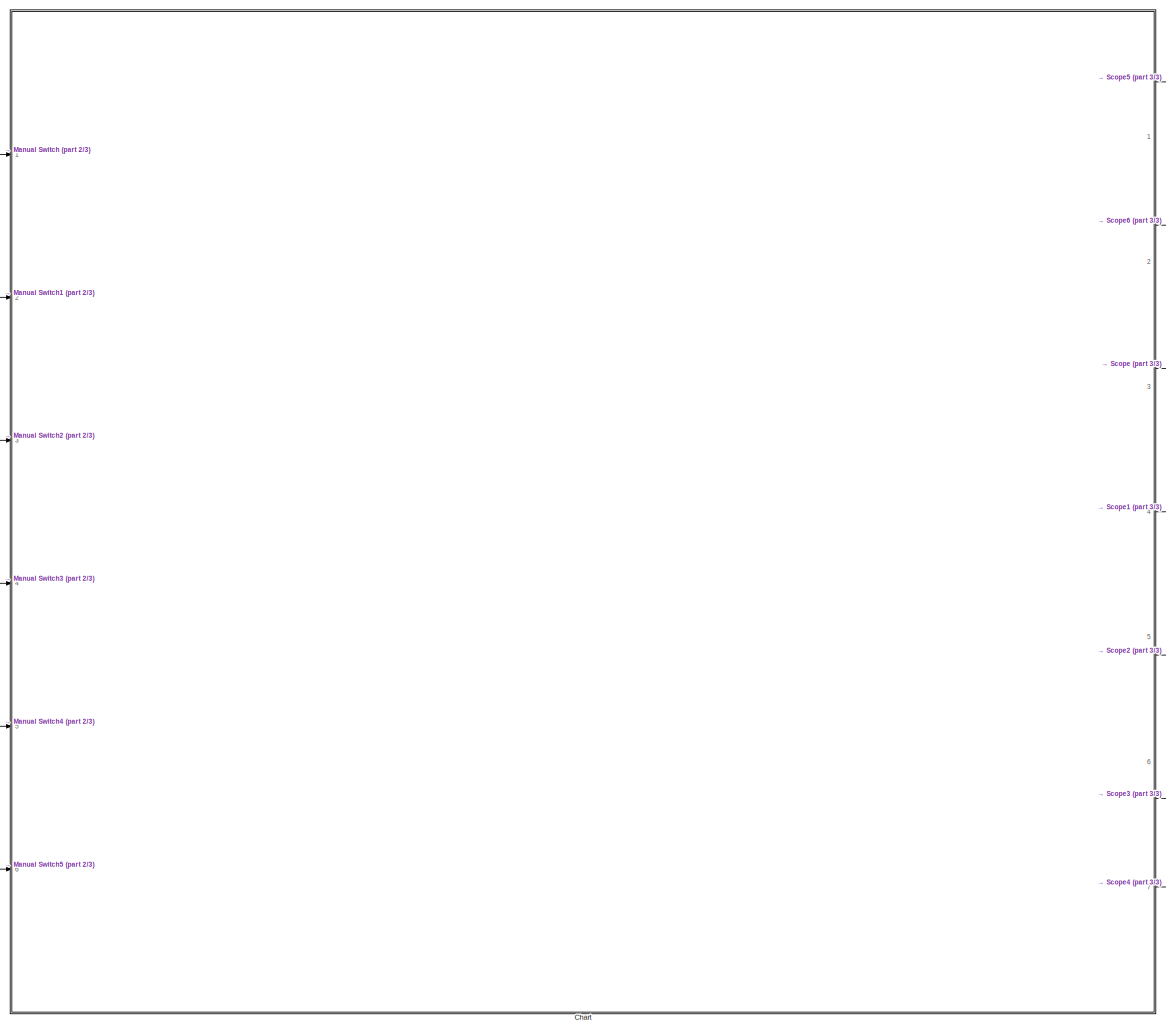
[diagram: root canvas - part 1/3, center side, full height]
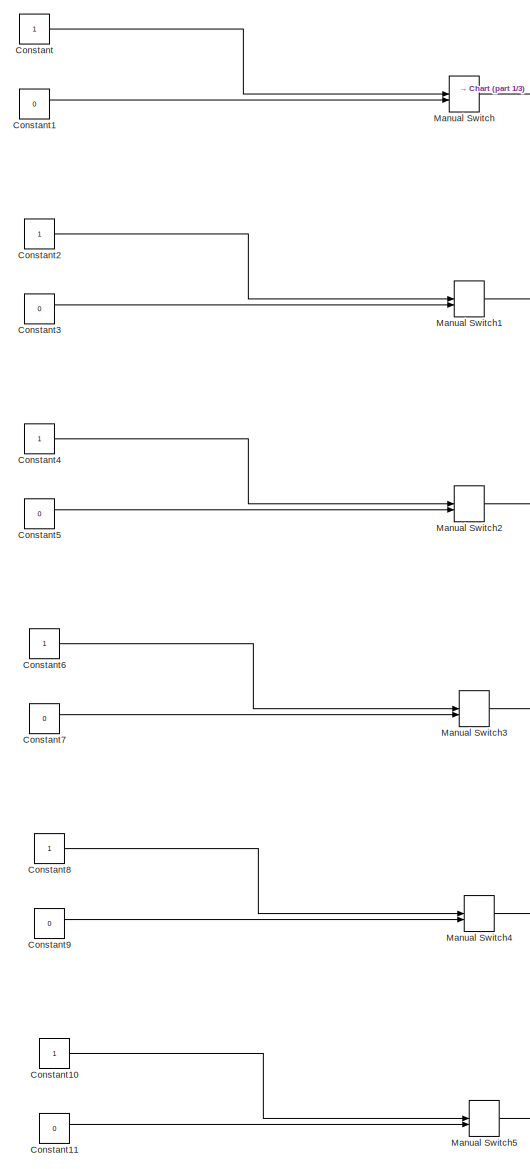
[diagram: root canvas - part 2/3, left side, full height]
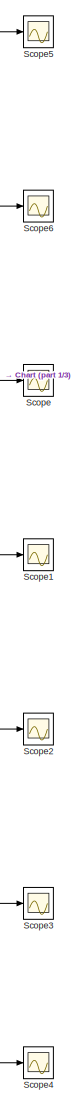
[diagram: root canvas - part 3/3, right side, full height]
MODEL slx_57e6ab57b922
KIND model
CONFIG AbsTol = auto
CONFIG EnableMultiTasking = on
CONFIG FixedStep = 0.1
CONFIG MaxStep = auto
CONFIG MinStep = auto
CONFIG RelTol = 1e-3
CONFIG SampleTimeConstraint = Unconstrained
CONFIG SolverName = FixedStepDiscrete
CONFIG StartTime = 0.0
CONFIG StopTime = inf
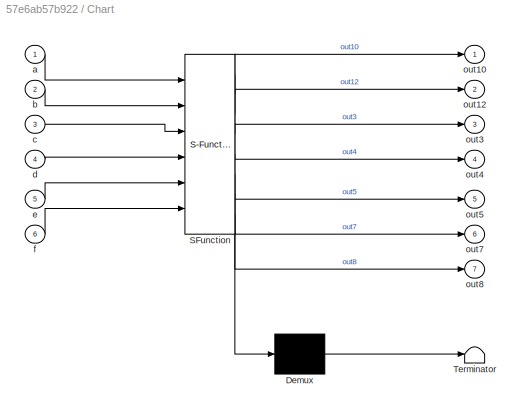
BLOCK [SubSystem] Chart
  ErrorFcn = Stateflow.Translate.translate
  PermitHierarchicalResolution = ExplicitOnly
  Ports = [6, 7]
  RequestExecContextInheritance = off
  SFBlockType = Chart
  TreatAsAtomicUnit = on
BLOCK [Demux] Chart/ Demux 
  Outputs = 1
  Ports = [1, 1]
BLOCK [S-Function] Chart/ SFunction 
  EnableBusSupport = on
  FunctionName = sf_sfun
  PortCounts = [6 8]
  Ports = [6, 8]
  SFcnIsStateOwnerBlock = off
  SFunctionDeploymentMode = off
  Tag = Stateflow S-Function 3
BLOCK [Terminator] Chart/ Terminator 
BLOCK [Inport] Chart/a
BLOCK [Inport] Chart/b
  Port = 2
BLOCK [Inport] Chart/c
  Port = 3
BLOCK [Inport] Chart/d
  Port = 4
BLOCK [Inport] Chart/e
  Port = 5
BLOCK [Inport] Chart/f
  Port = 6
BLOCK [Outport] Chart/out10
BLOCK [Outport] Chart/out12
  Port = 2
BLOCK [Outport] Chart/out3
  Port = 3
BLOCK [Outport] Chart/out4
  Port = 4
BLOCK [Outport] Chart/out5
  Port = 5
BLOCK [Outport] Chart/out7
  Port = 6
BLOCK [Outport] Chart/out8
  Port = 7
BLOCK [Constant] Constant
BLOCK [Constant] Constant1
  Value = 0
BLOCK [Constant] Constant10
BLOCK [Constant] Constant11
  Value = 0
BLOCK [Constant] Constant2
BLOCK [Constant] Constant3
  Value = 0
BLOCK [Constant] Constant4
BLOCK [Constant] Constant5
  Value = 0
BLOCK [Constant] Constant6
BLOCK [Constant] Constant7
  Value = 0
BLOCK [Constant] Constant8
BLOCK [Constant] Constant9
  Value = 0
BLOCK [ManualSwitch] Manual Switch
  CurrentSetting = 0
BLOCK [ManualSwitch] Manual Switch1
  CurrentSetting = 0
BLOCK [ManualSwitch] Manual Switch2
BLOCK [ManualSwitch] Manual Switch3
  CurrentSetting = 0
BLOCK [ManualSwitch] Manual Switch4
  CurrentSetting = 0
BLOCK [ManualSwitch] Manual Switch5
  CurrentSetting = 0
BLOCK [Scope] Scope
  Floating = off
  NumInputPorts = 1
  Ports = [1]
  ScopeSpecificationString = Simulink.scopes.TimeScopeBlockCfg('CurrentConfiguration', extmgr.ConfigurationSet(extmgr.Configuration('Core','General UI',true),extmgr.Configuration('Core','Source UI',true),extmgr.Configuration('Sources','WiredSimulink',true),extmgr.Configuration('Visuals','Time Domain',true,'SerializedDisplays',{struct('MinYLimReal','-1.00000','MaxYLimReal','1.00000','YLabelReal','','MinYLimMag','0.00000','MaxY...<+1360ch>
BLOCK [Scope] Scope1
  Floating = off
  NumInputPorts = 1
  Ports = [1]
  ScopeSpecificationString = Simulink.scopes.TimeScopeBlockCfg('CurrentConfiguration', extmgr.ConfigurationSet(extmgr.Configuration('Core','General UI',true),extmgr.Configuration('Core','Source UI',true),extmgr.Configuration('Sources','WiredSimulink',true,'DataLoggingVariableName','ScopeData1'),extmgr.Configuration('Visuals','Time Domain',true,'SerializedDisplays',{struct('MinYLimReal','0.9','MaxYLimReal','1.1','YLabelReal','...<+1351ch>
BLOCK [Scope] Scope2
  Floating = off
  NumInputPorts = 1
  Ports = [1]
  ScopeSpecificationString = Simulink.scopes.TimeScopeBlockCfg('CurrentConfiguration', extmgr.ConfigurationSet(extmgr.Configuration('Core','General UI',true),extmgr.Configuration('Core','Source UI',true),extmgr.Configuration('Sources','WiredSimulink',true,'DataLoggingVariableName','ScopeData2'),extmgr.Configuration('Visuals','Time Domain',true),extmgr.Configuration('Tools','Plot Navigation',true),extmgr.Configuration('Tools',...<+40ch>
BLOCK [Scope] Scope3
  Floating = off
  NumInputPorts = 1
  Ports = [1]
  ScopeSpecificationString = Simulink.scopes.TimeScopeBlockCfg('CurrentConfiguration', extmgr.ConfigurationSet(extmgr.Configuration('Core','General UI',true),extmgr.Configuration('Core','Source UI',true),extmgr.Configuration('Sources','WiredSimulink',true,'DataLoggingVariableName','ScopeData3'),extmgr.Configuration('Visuals','Time Domain',true),extmgr.Configuration('Tools','Plot Navigation',true),extmgr.Configuration('Tools',...<+40ch>
BLOCK [Scope] Scope4
  Floating = off
  NumInputPorts = 1
  Ports = [1]
  ScopeSpecificationString = Simulink.scopes.TimeScopeBlockCfg('CurrentConfiguration', extmgr.ConfigurationSet(extmgr.Configuration('Core','General UI',true),extmgr.Configuration('Core','Source UI',true),extmgr.Configuration('Sources','WiredSimulink',true,'DataLoggingVariableName','ScopeData4'),extmgr.Configuration('Visuals','Time Domain',true),extmgr.Configuration('Tools','Plot Navigation',true),extmgr.Configuration('Tools',...<+40ch>
BLOCK [Scope] Scope5
  Floating = off
  NumInputPorts = 1
  Ports = [1]
  ScopeSpecificationString = Simulink.scopes.TimeScopeBlockCfg('CurrentConfiguration', extmgr.ConfigurationSet(extmgr.Configuration('Core','General UI',true),extmgr.Configuration('Core','Source UI',true),extmgr.Configuration('Sources','WiredSimulink',true,'DataLoggingVariableName','ScopeData5'),extmgr.Configuration('Visuals','Time Domain',true,'SerializedDisplays',{struct('MinYLimReal','0.9','MaxYLimReal','1.1','YLabelReal','...<+1336ch>
BLOCK [Scope] Scope6
  Floating = off
  NumInputPorts = 1
  Ports = [1]
  ScopeSpecificationString = Simulink.scopes.TimeScopeBlockCfg('CurrentConfiguration', extmgr.ConfigurationSet(extmgr.Configuration('Core','General UI',true),extmgr.Configuration('Core','Source UI',true),extmgr.Configuration('Sources','WiredSimulink',true,'DataLoggingVariableName','ScopeData6'),extmgr.Configuration('Visuals','Time Domain',true,'SerializedDisplays',{struct('MinYLimReal','0.9','MaxYLimReal','1.1','YLabelReal','...<+1367ch>
LINE Chart:1 -> Scope5:1
LINE Chart:2 -> Scope6:1
LINE Chart:3 -> Scope:1
LINE Chart:4 -> Scope1:1
LINE Chart:5 -> Scope2:1
LINE Chart:6 -> Scope3:1
LINE Chart:7 -> Scope4:1
LINE Constant10:1 -> Manual Switch5:1
LINE Constant11:1 -> Manual Switch5:2
LINE Constant1:1 -> Manual Switch:2
LINE Constant2:1 -> Manual Switch1:1
LINE Constant3:1 -> Manual Switch1:2
LINE Constant4:1 -> Manual Switch2:1
LINE Constant5:1 -> Manual Switch2:2
LINE Constant6:1 -> Manual Switch3:1
LINE Constant7:1 -> Manual Switch3:2
LINE Constant8:1 -> Manual Switch4:1
LINE Constant9:1 -> Manual Switch4:2
LINE Constant:1 -> Manual Switch:1
LINE Manual Switch1:1 -> Chart:2
LINE Manual Switch2:1 -> Chart:3
LINE Manual Switch3:1 -> Chart:4
LINE Manual Switch4:1 -> Chart:5
LINE Manual Switch5:1 -> Chart:6
LINE Manual Switch:1 -> Chart:1
CHART Chart states=16 transitions=20
  STATE_LABEL 'state2'
  STATE_LABEL 'state6'
  STATE_LABEL 'd'
  STATE_LABEL 'state8'
  STATE_LABEL 'state9'
  STATE_LABEL '[a==1 & hasChanged(a)]{out8 =1}'
  STATE_LABEL '[b==1& hasChanged(b)]{out8 =0}'
  STATE_LABEL 'e'
  STATE_LABEL 'state10'
  STATE_LABEL 'state11'
  STATE_LABEL '[c==1& hasChanged(c)]{out10 =1}'
  STATE_LABEL '[c==1& hasChanged(c)]{out10 =0}'
  STATE_LABEL 'f'
  STATE_LABEL 'state12'
  STATE_LABEL 'state13'
  STATE_LABEL '[c==1& hasChanged(c)]{out12 =1}'
  STATE_LABEL '[a==1& hasChanged(a)]{out12 =0}'
  STATE_LABEL 'state7'
  STATE_LABEL '[e==1& hasChanged(e)]{out7 =0}'
  STATE_LABEL '[d==1& hasChanged(d)]{out7 =1}'
  STATE_LABEL 'state6'
  STATE_LABEL 'd'
  STATE_LABEL 'state8'
  STATE_LABEL 'state9'
  STATE_LABEL '[a==1 & hasChanged(a)]{out8 =1}'
  STATE_LABEL '[b==1& hasChanged(b)]{out8 =0}'
  STATE_LABEL 'e'
  STATE_LABEL 'state10'
  STATE_LABEL 'state11'
  STATE_LABEL '[c==1& hasChanged(c)]{out10 =1}'
  STATE_LABEL '[c==1& hasChanged(c)]{out10 =0}'
  STATE_LABEL 'f'
  STATE_LABEL 'state12'
  STATE_LABEL 'state13'
  STATE_LABEL '[c==1& hasChanged(c)]{out12 =1}'
  STATE_LABEL '[a==1& hasChanged(a)]{out12 =0}'
  STATE_LABEL 'd'
  STATE_LABEL 'state8'
  STATE_LABEL 'state9'
  STATE_LABEL '[a==1 & hasChanged(a)]{out8 =1}'
CHART  states=0 transitions=0
